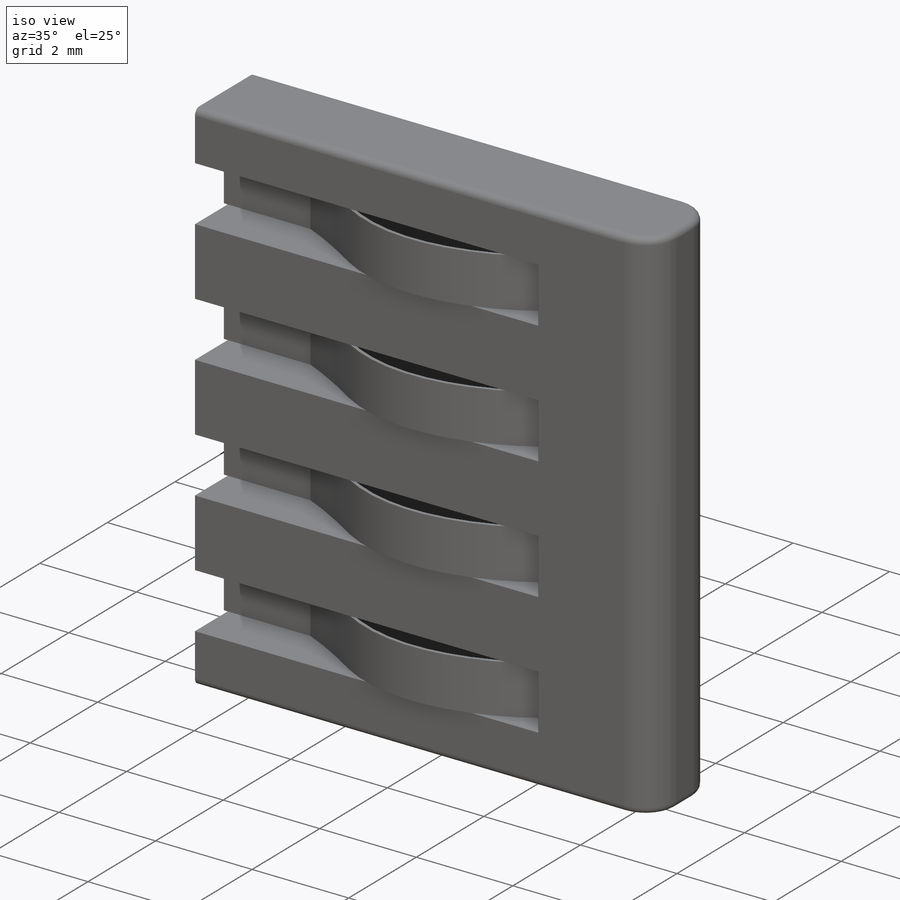
[diagram: iso view]
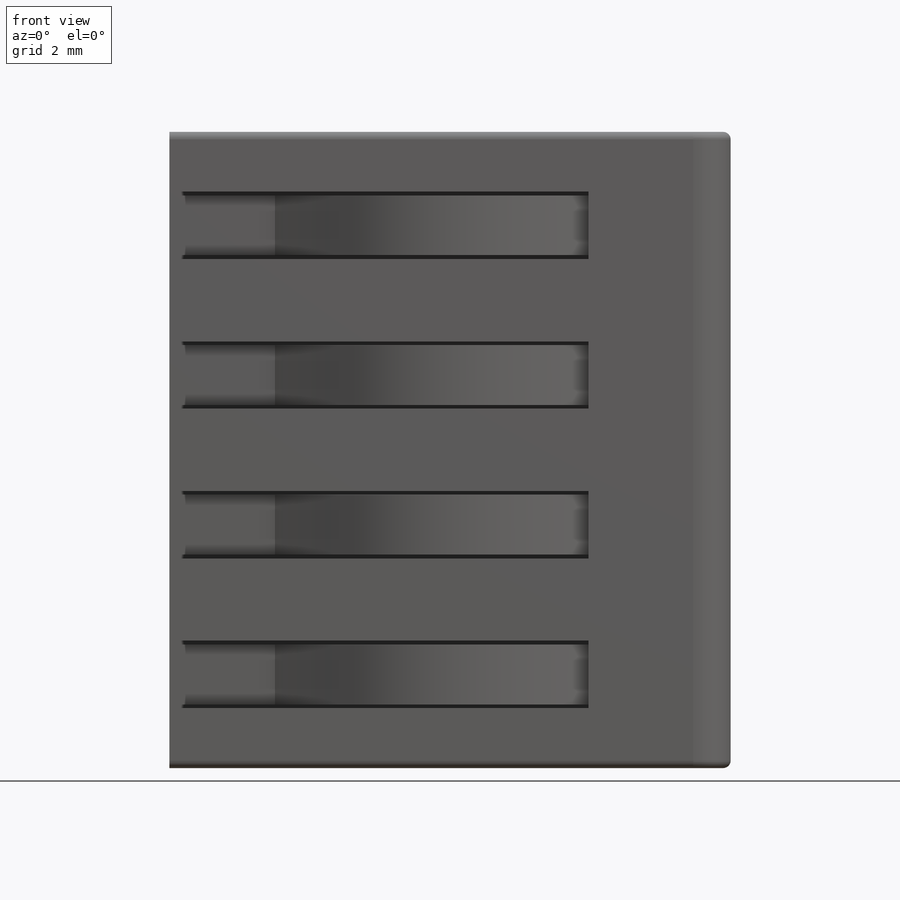
[diagram: front view]
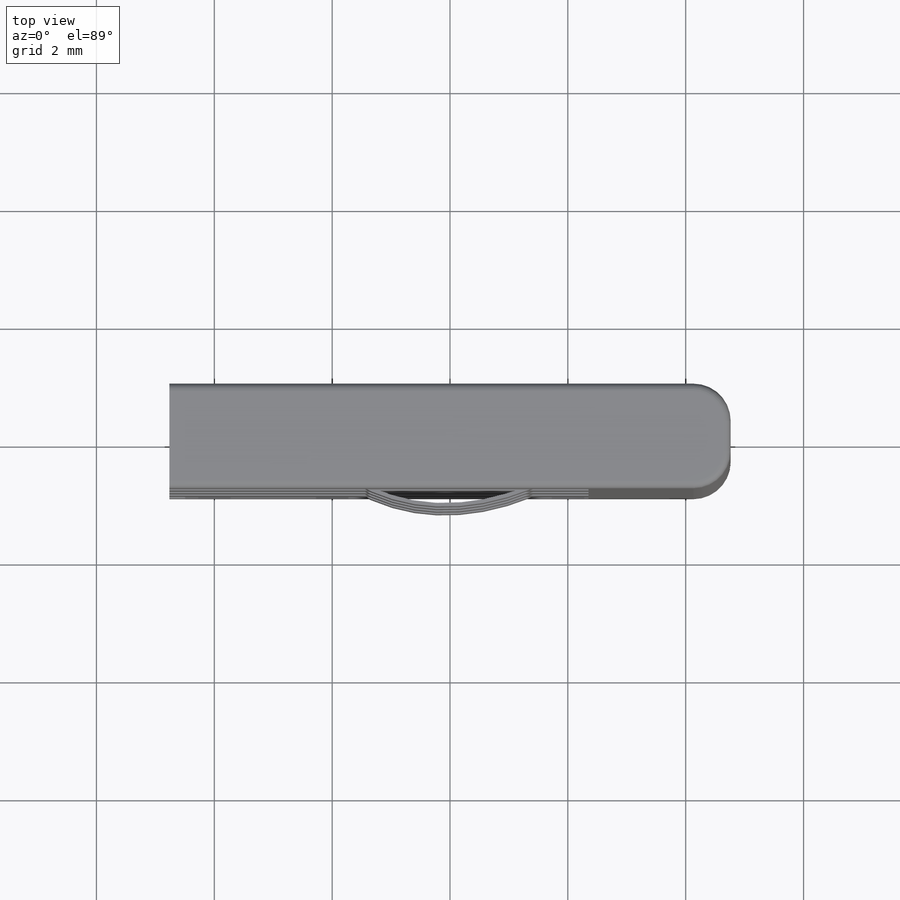
[diagram: top view]
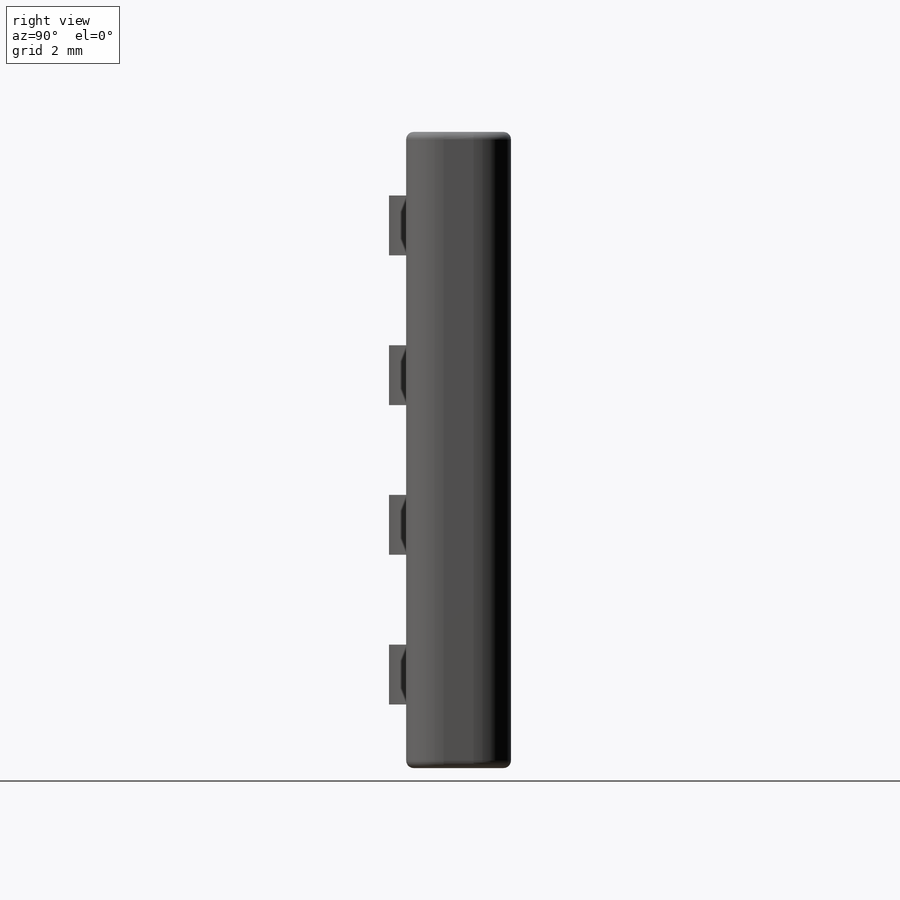
[diagram: right view]
SOLIDWORKS PART (.sldprt)
format: sldprt  version: not decoded by parser v0  size: 350,720 bytes
history: native  units: mm
features: sketch x5, cut_extrude x2, pattern_linear x2, plane x2, material x1, extrude x1, sweep x1, fillet x1 (+13 scaffold rows collapsed)
feature tree (28):
  scaffold x13  (default folders/planes/origin — collapsed)
  material  "Material <not specified>"
  sketch  "Sketch1"  dims[D1=9.525mm D2=10.795mm]
  extrude  "Boss-Extrude1"  Depth=1.778mm
  sketch  "Sketch2"  dims[D1=1.143mm D2=7.112mm D3=3.81mm]
  cut_extrude  "Cut-Extrude1"  Depth=1.27mm
  pattern_linear  "LPattern1"  Count1=4 Count2=1 Spacing1=2.54mm Spacing2=2.54mm
  plane  "Plane1"  Offset=0.5715mm
  sketch  "Sketch3"  dims[D1=~0.121154mm D2=~1.399344mm D3=~2.963695mm D4=~2.517894mm D5=~0.166899mm D6=~0.860047mm D7=~1.15097mm]
  plane  "Plane2"
  sketch  "Sketch4"  dims[D1=1.016mm D2=0.0635mm]
  sweep  "Sweep1"
  pattern_linear  "LPattern2"  Count1=4 Count2=1 Spacing1=2.54mm Spacing2=2.54mm
  sketch  "Sketch5"  dims[c1.D1=0.635mm c1.D4=0.635mm c1.D5=0.635mm c2.D1=0.635mm c2.D2=1.905mm c2.D3=~0.702636mm c2.D4=~0.702636mm c2.D5=3.4925mm c3.D2=~0.067636mm c3.D3=0.508mm]
  cut_extrude  "Cut-Extrude2"  [1 undecoded]
  fillet  "Fillet2"  Radius=0.127mm
decode coverage: 10 of 12 modeling features carry decoded parameters
note: ~ marks probable driven/reference dimensions
note: 1 parameter value undecoded
note: suppression state not decoded; provenance and decode notes live in map.json
